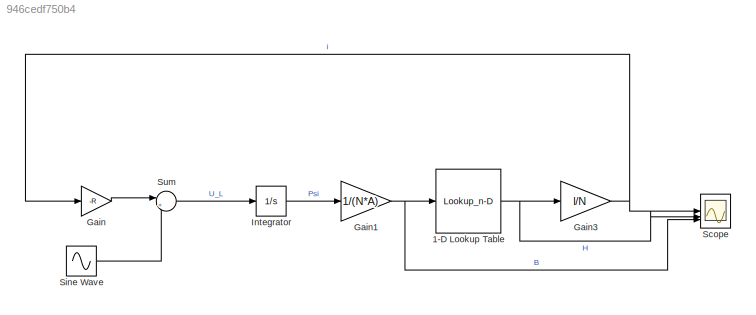
MODEL slx_946cedf750b4
KIND model
CONFIG AbsTol = auto
CONFIG EnableMultiTasking = off
CONFIG FixedStep = auto
CONFIG MaxStep = te/500
CONFIG MinStep = auto
CONFIG RelTol = 1e-3
CONFIG SampleTimeConstraint = Unconstrained
CONFIG SolverName = VariableStepAuto
CONFIG StartTime = 0.0
CONFIG StopTime = te
BLOCK [Lookup_n-D] 1-D Lookup Table
  BreakpointsForDimension1 = B
  InputPortMap = u0
  InternalRulePriority = Speed
  NumberOfTableDimensions = 1
  RndMeth = Simplest
  Table = H
BLOCK [Gain] Gain
  Gain = -R
BLOCK [Gain] Gain1
  Gain = 1/(N*A)
BLOCK [Gain] Gain3
  Gain = l/N
BLOCK [Integrator] Integrator
BLOCK [Scope] Scope
  Floating = off
  NumInputPorts = 3
  ScopeSpecificationString = Simulink.scopes.TimeScopeBlockCfg('CurrentConfiguration', extmgr.ConfigurationSet(extmgr.Configuration('Core','General UI',true),extmgr.Configuration('Core','Source UI',true),extmgr.Configuration('Sources','WiredSimulink',true),extmgr.Configuration('Visuals','Time Domain',true,'SerializedDisplays',{struct('MinYLimReal','-1.62041','MaxYLimReal','13.00638','YLabelReal','','MinYLimMag','0.00000','Max...<+3027ch>
BLOCK [Sin] Sine Wave
  Amplitude = U
  Frequency = w
  SampleTime = 0
BLOCK [Sum] Sum
  Inputs = |++
NET 1-D Lookup Table:1 -> Gain3:1, Scope:2
NET Gain1:1 -> 1-D Lookup Table:1, Scope:3
NET Gain3:1 -> Gain:1, Scope:1
LINE Gain:1 -> Sum:1
LINE Integrator:1 -> Gain1:1
LINE Sine Wave:1 -> Sum:2
LINE Sum:1 -> Integrator:1
note: NET lines group one-source signal fan-out (src -> all destinations, sorted); 1:1 wires keep LINE
